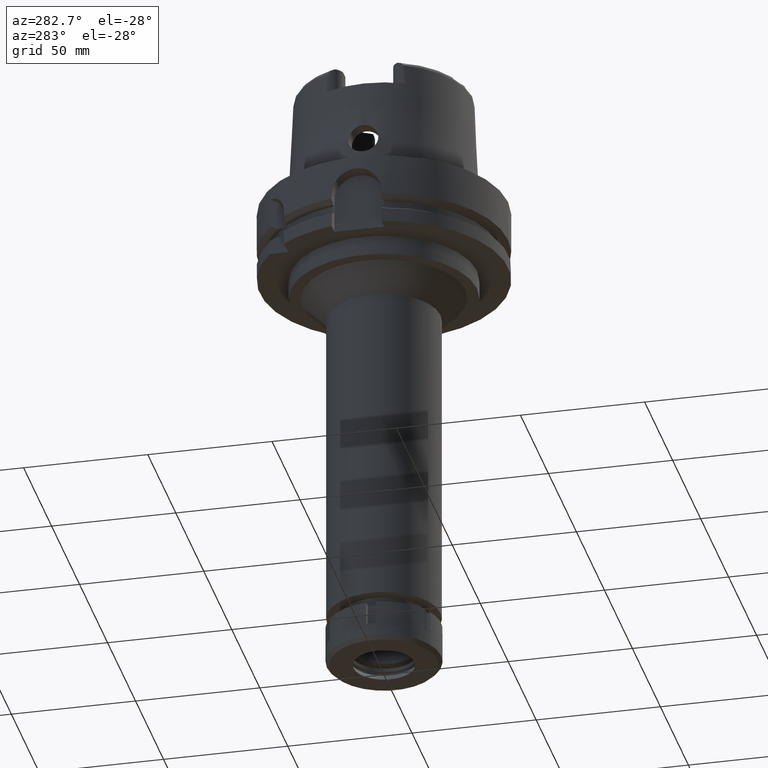
[diagram: clean part render]
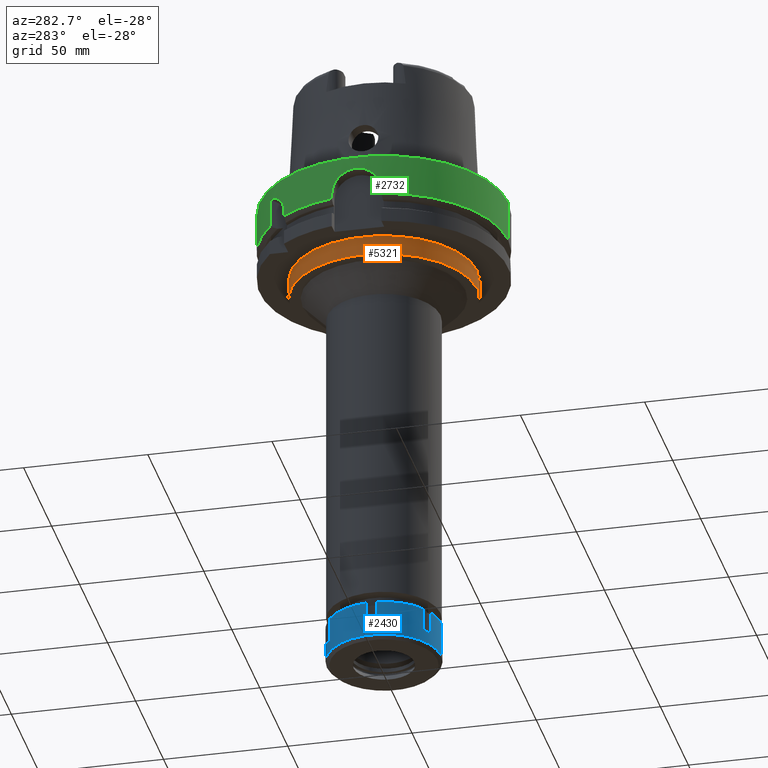
[diagram: same view with three faces highlighted in distinct colors, each labeled with its STEP entity id]
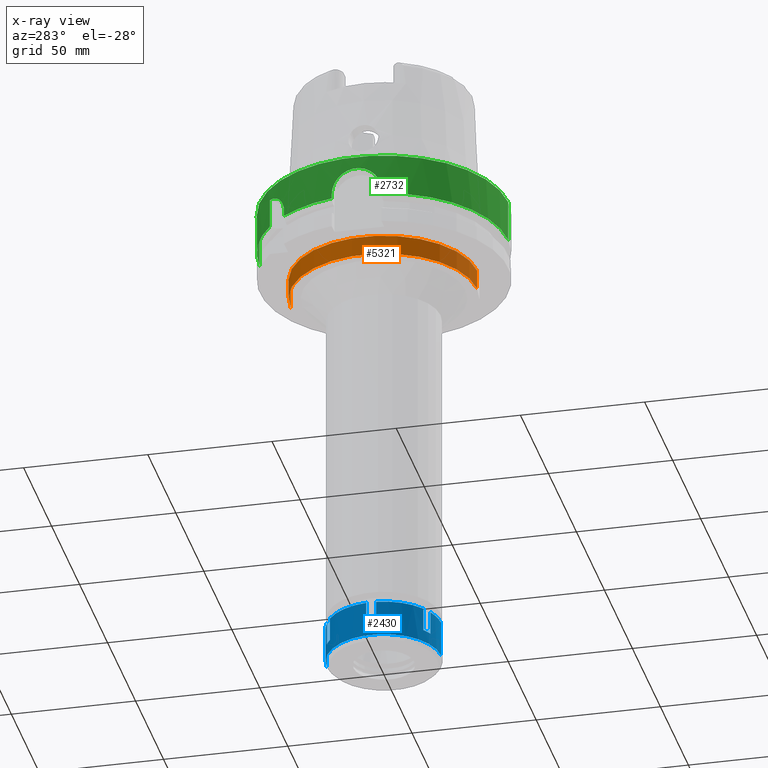
[diagram: x-ray of the same camera — body ghosted, the three highlighted faces saturated]
A machine part, auxiliary view with three faces highlighted in distinct colors.
The next image is the same camera in x-ray (body ghosted, the three faces saturated) — at least one of them is partly hidden behind the body in this view.
Their STEP definitions:

[orange] entity #5321 — the highlighted cylindrical surface (partial cylindrical patch) has radius 37.5 mm, axis along (0, 0, 1).
#343 = ORIENTED_EDGE ( 'NONE', *, *, #6106, .T. ) ;
#688 = ORIENTED_EDGE ( 'NONE', *, *, #4340, .T. ) ;
#834 = DIRECTION ( 'NONE',  ( 0.0000000000000000000, 0.0000000000000000000, -1.000000000000000000 ) ) ;
#878 = FACE_OUTER_BOUND ( 'NONE', #3009, .T. ) ;
#935 = VERTEX_POINT ( 'NONE', #6108 ) ;
#1067 = AXIS2_PLACEMENT_3D ( 'NONE', #3177, #5457, #4167 ) ;
#1122 = VECTOR ( 'NONE', #4808, 1000.000000000000000 ) ;
#1273 = VERTEX_POINT ( 'NONE', #5536 ) ;
#1358 = EDGE_CURVE ( 'NONE', #2012, #1482, #1552, .T. ) ;
#1482 = VERTEX_POINT ( 'NONE', #3808 ) ;
#1533 = CARTESIAN_POINT ( 'NONE',  ( 0.0000000000000000000, 0.0000000000000000000, -37.00000000000000000 ) ) ;
#1552 = CIRCLE ( 'NONE', #4937, 37.50000000000000000 ) ;
#1640 = ORIENTED_EDGE ( 'NONE', *, *, #1358, .T. ) ;
#2012 = VERTEX_POINT ( 'NONE', #2828 ) ;
#2215 = EDGE_CURVE ( 'NONE', #2012, #1273, #2538, .T. ) ;
#2538 = LINE ( 'NONE', #2923, #1122 ) ;
#2681 = VECTOR ( 'NONE', #3969, 1000.000000000000000 ) ;
#2828 = CARTESIAN_POINT ( 'NONE',  ( 0.0000000000000000000, -37.50000000000000000, -29.00000000000000000 ) ) ;
#2923 = CARTESIAN_POINT ( 'NONE',  ( 0.0000000000000000000, -37.50000000000000000, -29.00000000000000000 ) ) ;
#3009 = EDGE_LOOP ( 'NONE', ( #688, #3938, #1640, #343 ) ) ;
#3177 = CARTESIAN_POINT ( 'NONE',  ( 0.0000000000000000000, 0.0000000000000000000, -204.0999999999999943 ) ) ;
#3515 = LINE ( 'NONE', #4437, #2681 ) ;
#3596 = CARTESIAN_POINT ( 'NONE',  ( 0.0000000000000000000, 0.0000000000000000000, -29.00000000000000000 ) ) ;
#3808 = CARTESIAN_POINT ( 'NONE',  ( 0.0000000000000000000, 37.50000000000000000, -29.00000000000000000 ) ) ;
#3938 = ORIENTED_EDGE ( 'NONE', *, *, #2215, .F. ) ;
#3964 = DIRECTION ( 'NONE',  ( 0.0000000000000000000, 0.0000000000000000000, 1.000000000000000000 ) ) ;
#3969 = DIRECTION ( 'NONE',  ( 0.0000000000000000000, 0.0000000000000000000, -1.000000000000000000 ) ) ;
#4167 = DIRECTION ( 'NONE',  ( 0.0000000000000000000, 1.000000000000000000, 0.0000000000000000000 ) ) ;
#4340 = EDGE_CURVE ( 'NONE', #935, #1273, #5031, .T. ) ;
#4437 = CARTESIAN_POINT ( 'NONE',  ( 0.0000000000000000000, 37.50000000000000000, -29.00000000000000000 ) ) ;
#4681 = DIRECTION ( 'NONE',  ( 0.0000000000000000000, -1.000000000000000000, 0.0000000000000000000 ) ) ;
#4808 = DIRECTION ( 'NONE',  ( 0.0000000000000000000, 0.0000000000000000000, -1.000000000000000000 ) ) ;
#4937 = AXIS2_PLACEMENT_3D ( 'NONE', #3596, #834, #4681 ) ;
#5031 = CIRCLE ( 'NONE', #5137, 37.50000000000000000 ) ;
#5137 = AXIS2_PLACEMENT_3D ( 'NONE', #1533, #3964, #5852 ) ;
#5321 = ADVANCED_FACE ( 'NONE', ( #878 ), #6089, .T. ) ;
#5457 = DIRECTION ( 'NONE',  ( 0.0000000000000000000, 0.0000000000000000000, 1.000000000000000000 ) ) ;
#5536 = CARTESIAN_POINT ( 'NONE',  ( 0.0000000000000000000, -37.50000000000000000, -37.00000000000000000 ) ) ;
#5852 = DIRECTION ( 'NONE',  ( 0.0000000000000000000, 1.000000000000000000, 0.0000000000000000000 ) ) ;
#6089 = CYLINDRICAL_SURFACE ( 'NONE', #1067, 37.50000000000000000 ) ;
#6106 = EDGE_CURVE ( 'NONE', #1482, #935, #3515, .T. ) ;
#6108 = CARTESIAN_POINT ( 'NONE',  ( 0.0000000000000000000, 37.50000000000000000, -37.00000000000000000 ) ) ;

[blue] entity #2430 — the highlighted cylindrical surface (partial cylindrical patch) has radius 23 mm, axis along (0, 0, -1).
#42 = DIRECTION ( 'NONE',  ( 0.0000000000000000000, 0.0000000000000000000, 1.000000000000000000 ) ) ;
#71 = VECTOR ( 'NONE', #4994, 1000.000000000000000 ) ;
#76 = CARTESIAN_POINT ( 'NONE',  ( -22.91287847478000117, 2.000000000000000000, 0.0000000000000000000 ) ) ;
#170 = CARTESIAN_POINT ( 'NONE',  ( 0.0000000000000000000, -23.00000000000000000, 0.0000000000000000000 ) ) ;
#220 = CYLINDRICAL_SURFACE ( 'NONE', #5785, 23.00000000000000000 ) ;
#249 = VERTEX_POINT ( 'NONE', #362 ) ;
#268 = ORIENTED_EDGE ( 'NONE', *, *, #706, .T. ) ;
#362 = CARTESIAN_POINT ( 'NONE',  ( -13.18849004495999999, -18.84313483298000236, 0.0000000000000000000 ) ) ;
#422 = CARTESIAN_POINT ( 'NONE',  ( -13.18849004495999999, -18.84313483298000236, 0.0000000000000000000 ) ) ;
#441 = DIRECTION ( 'NONE',  ( -0.4227994969487938182, -0.9062232536079875000, 0.0000000000000000000 ) ) ;
#454 = LINE ( 'NONE', #422, #5569 ) ;
#556 = CARTESIAN_POINT ( 'NONE',  ( 0.0000000000000000000, 0.0000000000000000000, -14.50000000000000000 ) ) ;
#558 = LINE ( 'NONE', #1596, #1286 ) ;
#601 = AXIS2_PLACEMENT_3D ( 'NONE', #5766, #939, #2912 ) ;
#646 = DIRECTION ( 'NONE',  ( 0.0000000000000000000, 0.0000000000000000000, -1.000000000000000000 ) ) ;
#706 = EDGE_CURVE ( 'NONE', #2223, #2675, #2584, .T. ) ;
#753 = VECTOR ( 'NONE', #3415, 1000.000000000000000 ) ;
#804 = CARTESIAN_POINT ( 'NONE',  ( -13.18849004495999999, 18.84313483298000236, -9.500000000000000000 ) ) ;
#818 = VERTEX_POINT ( 'NONE', #5510 ) ;
#825 = EDGE_CURVE ( 'NONE', #2223, #1853, #4625, .T. ) ;
#847 = CARTESIAN_POINT ( 'NONE',  ( -13.18849004495999999, -18.84313483298000236, -9.500000000000000000 ) ) ;
#853 = VERTEX_POINT ( 'NONE', #804 ) ;
#871 = CARTESIAN_POINT ( 'NONE',  ( -22.91287847478000117, -2.000000000000000000, -9.500000000000000000 ) ) ;
#894 = CARTESIAN_POINT ( 'NONE',  ( -22.91287847478000117, -2.000000000000000000, 0.0000000000000000000 ) ) ;
#939 = DIRECTION ( 'NONE',  ( 0.0000000000000000000, 0.0000000000000000000, -1.000000000000000000 ) ) ;
#997 = EDGE_CURVE ( 'NONE', #6116, #3587, #5939, .T. ) ;
#1027 = EDGE_CURVE ( 'NONE', #853, #4816, #3297, .T. ) ;
#1047 = LINE ( 'NONE', #5761, #753 ) ;
#1059 = CARTESIAN_POINT ( 'NONE',  ( -9.724388429823001445, -20.84313483297999881, -9.500000000000000000 ) ) ;
#1134 = DIRECTION ( 'NONE',  ( -0.9962121075990957308, 0.08695652173912968297, 0.0000000000000000000 ) ) ;
#1237 = FACE_OUTER_BOUND ( 'NONE', #5782, .T. ) ;
#1286 = VECTOR ( 'NONE', #1970, 1000.000000000000000 ) ;
#1328 = DIRECTION ( 'NONE',  ( -0.5734126106503841802, -0.8192667318688773292, 0.0000000000000000000 ) ) ;
#1431 = AXIS2_PLACEMENT_3D ( 'NONE', #2648, #3097, #5968 ) ;
#1517 = CARTESIAN_POINT ( 'NONE',  ( 0.0000000000000000000, 23.00000000000000000, -14.50000000000000000 ) ) ;
#1596 = CARTESIAN_POINT ( 'NONE',  ( -9.724388429820001178, 20.84313483297999881, 0.0000000000000000000 ) ) ;
#1620 = CARTESIAN_POINT ( 'NONE',  ( -13.18849004495999999, 18.84313483298000236, -9.500000000000000000 ) ) ;
#1626 = ORIENTED_EDGE ( 'NONE', *, *, #2594, .F. ) ;
#1651 = VECTOR ( 'NONE', #646, 1000.000000000000000 ) ;
#1692 = ORIENTED_EDGE ( 'NONE', *, *, #2549, .T. ) ;
#1752 = CARTESIAN_POINT ( 'NONE',  ( 0.0000000000000000000, 0.0000000000000000000, 0.0000000000000000000 ) ) ;
#1765 = DIRECTION ( 'NONE',  ( -0.9962121075990957308, -0.08695652173912968297, 0.0000000000000000000 ) ) ;
#1817 = DIRECTION ( 'NONE',  ( 0.0000000000000000000, 0.0000000000000000000, -1.000000000000000000 ) ) ;
#1853 = VERTEX_POINT ( 'NONE', #894 ) ;
#1875 = CARTESIAN_POINT ( 'NONE',  ( -9.724388429822001356, -20.84313483297999881, -9.500000000000000000 ) ) ;
#1876 = DIRECTION ( 'NONE',  ( 0.0000000000000000000, 0.0000000000000000000, -1.000000000000000000 ) ) ;
#1905 = DIRECTION ( 'NONE',  ( -0.5734126106504978670, 0.8192667318687978373, 0.0000000000000000000 ) ) ;
#1968 = CARTESIAN_POINT ( 'NONE',  ( 0.0000000000000000000, 0.0000000000000000000, -9.500000000000000000 ) ) ;
#1970 = DIRECTION ( 'NONE',  ( 0.0000000000000000000, 0.0000000000000000000, -1.000000000000000000 ) ) ;
#1976 = CARTESIAN_POINT ( 'NONE',  ( 0.0000000000000000000, 23.00000000000000000, 0.0000000000000000000 ) ) ;
#2000 = LINE ( 'NONE', #5324, #1651 ) ;
#2083 = EDGE_CURVE ( 'NONE', #5860, #818, #3062, .T. ) ;
#2153 = CIRCLE ( 'NONE', #5634, 22.99999999999999289 ) ;
#2196 = DIRECTION ( 'NONE',  ( 0.0000000000000000000, 0.0000000000000000000, 1.000000000000000000 ) ) ;
#2217 = DIRECTION ( 'NONE',  ( 0.0000000000000000000, 0.0000000000000000000, -1.000000000000000000 ) ) ;
#2223 = VERTEX_POINT ( 'NONE', #3879 ) ;
#2346 = CARTESIAN_POINT ( 'NONE',  ( 0.0000000000000000000, 0.0000000000000000000, -9.500000000000000000 ) ) ;
#2430 = ADVANCED_FACE ( 'NONE', ( #1237 ), #220, .T. ) ;
#2485 = VERTEX_POINT ( 'NONE', #5015 ) ;
#2549 = EDGE_CURVE ( 'NONE', #3684, #5387, #6086, .T. ) ;
#2584 = CIRCLE ( 'NONE', #2677, 23.00000000000000355 ) ;
#2594 = EDGE_CURVE ( 'NONE', #3684, #2485, #5181, .T. ) ;
#2648 = CARTESIAN_POINT ( 'NONE',  ( 0.0000000000000000000, 0.0000000000000000000, 0.0000000000000000000 ) ) ;
#2675 = VERTEX_POINT ( 'NONE', #6107 ) ;
#2677 = AXIS2_PLACEMENT_3D ( 'NONE', #1968, #3421, #1765 ) ;
#2702 = CARTESIAN_POINT ( 'NONE',  ( 0.0000000000000000000, -23.00000000000000000, 0.0000000000000000000 ) ) ;
#2733 = ORIENTED_EDGE ( 'NONE', *, *, #3382, .F. ) ;
#2900 = EDGE_CURVE ( 'NONE', #5906, #2485, #6092, .T. ) ;
#2912 = DIRECTION ( 'NONE',  ( -0.4227994969487119392, 0.9062232536080258027, 0.0000000000000000000 ) ) ;
#2998 = EDGE_CURVE ( 'NONE', #853, #5285, #5500, .T. ) ;
#3028 = EDGE_CURVE ( 'NONE', #5541, #5285, #4773, .T. ) ;
#3062 = CIRCLE ( 'NONE', #3860, 23.00000000000000000 ) ;
#3097 = DIRECTION ( 'NONE',  ( 0.0000000000000000000, 0.0000000000000000000, -1.000000000000000000 ) ) ;
#3221 = ORIENTED_EDGE ( 'NONE', *, *, #4891, .F. ) ;
#3297 = CIRCLE ( 'NONE', #4367, 23.00000000000000355 ) ;
#3322 = AXIS2_PLACEMENT_3D ( 'NONE', #4946, #2217, #1134 ) ;
#3364 = ORIENTED_EDGE ( 'NONE', *, *, #2900, .T. ) ;
#3382 = EDGE_CURVE ( 'NONE', #249, #5387, #454, .T. ) ;
#3415 = DIRECTION ( 'NONE',  ( 0.0000000000000000000, 0.0000000000000000000, -1.000000000000000000 ) ) ;
#3416 = AXIS2_PLACEMENT_3D ( 'NONE', #2346, #1817, #441 ) ;
#3421 = DIRECTION ( 'NONE',  ( 0.0000000000000000000, 0.0000000000000000000, -1.000000000000000000 ) ) ;
#3574 = DIRECTION ( 'NONE',  ( 0.0000000000000000000, 0.0000000000000000000, -1.000000000000000000 ) ) ;
#3587 = VERTEX_POINT ( 'NONE', #1976 ) ;
#3672 = CARTESIAN_POINT ( 'NONE',  ( -13.18849004495999999, 18.84313483298000236, 0.0000000000000000000 ) ) ;
#3684 = VERTEX_POINT ( 'NONE', #1059 ) ;
#3744 = DIRECTION ( 'NONE',  ( 0.0000000000000000000, 0.0000000000000000000, -1.000000000000000000 ) ) ;
#3860 = AXIS2_PLACEMENT_3D ( 'NONE', #556, #4281, #3873 ) ;
#3873 = DIRECTION ( 'NONE',  ( 0.0000000000000000000, 1.000000000000000000, 0.0000000000000000000 ) ) ;
#3879 = CARTESIAN_POINT ( 'NONE',  ( -22.91287847478000117, -2.000000000000000000, -9.500000000000000000 ) ) ;
#4103 = LINE ( 'NONE', #2702, #71 ) ;
#4191 = CARTESIAN_POINT ( 'NONE',  ( 0.0000000000000000000, 0.0000000000000000000, 0.0000000000000000000 ) ) ;
#4268 = VECTOR ( 'NONE', #2196, 1000.000000000000000 ) ;
#4281 = DIRECTION ( 'NONE',  ( 0.0000000000000000000, 0.0000000000000000000, 1.000000000000000000 ) ) ;
#4294 = EDGE_CURVE ( 'NONE', #6116, #4816, #558, .T. ) ;
#4307 = EDGE_CURVE ( 'NONE', #3587, #5860, #2000, .T. ) ;
#4367 = AXIS2_PLACEMENT_3D ( 'NONE', #4715, #1876, #1905 ) ;
#4374 = ORIENTED_EDGE ( 'NONE', *, *, #4307, .T. ) ;
#4610 = ORIENTED_EDGE ( 'NONE', *, *, #5384, .F. ) ;
#4625 = LINE ( 'NONE', #871, #4268 ) ;
#4664 = ORIENTED_EDGE ( 'NONE', *, *, #1027, .T. ) ;
#4715 = CARTESIAN_POINT ( 'NONE',  ( 0.0000000000000000000, 0.0000000000000000000, -9.500000000000000000 ) ) ;
#4719 = EDGE_CURVE ( 'NONE', #249, #1853, #2153, .T. ) ;
#4773 = CIRCLE ( 'NONE', #3322, 23.00000000000000355 ) ;
#4798 = CARTESIAN_POINT ( 'NONE',  ( -9.724388429820001178, 20.84313483297999881, -9.500000000000000000 ) ) ;
#4816 = VERTEX_POINT ( 'NONE', #4798 ) ;
#4891 = EDGE_CURVE ( 'NONE', #5541, #2675, #1047, .T. ) ;
#4946 = CARTESIAN_POINT ( 'NONE',  ( 0.0000000000000000000, 0.0000000000000000000, 0.0000000000000000000 ) ) ;
#4994 = DIRECTION ( 'NONE',  ( 0.0000000000000000000, 0.0000000000000000000, -1.000000000000000000 ) ) ;
#4995 = ORIENTED_EDGE ( 'NONE', *, *, #2083, .T. ) ;
#4998 = ORIENTED_EDGE ( 'NONE', *, *, #825, .F. ) ;
#5006 = DIRECTION ( 'NONE',  ( 0.0000000000000000000, 0.0000000000000000000, 1.000000000000000000 ) ) ;
#5015 = CARTESIAN_POINT ( 'NONE',  ( -9.724388429823001445, -20.84313483297999881, 0.0000000000000000000 ) ) ;
#5024 = ORIENTED_EDGE ( 'NONE', *, *, #3028, .T. ) ;
#5181 = LINE ( 'NONE', #1875, #5877 ) ;
#5285 = VERTEX_POINT ( 'NONE', #3672 ) ;
#5324 = CARTESIAN_POINT ( 'NONE',  ( 0.0000000000000000000, 23.00000000000000000, 0.0000000000000000000 ) ) ;
#5384 = EDGE_CURVE ( 'NONE', #5906, #818, #4103, .T. ) ;
#5387 = VERTEX_POINT ( 'NONE', #847 ) ;
#5417 = CARTESIAN_POINT ( 'NONE',  ( -9.724388429820001178, 20.84313483297999881, 0.0000000000000000000 ) ) ;
#5480 = ORIENTED_EDGE ( 'NONE', *, *, #997, .T. ) ;
#5500 = LINE ( 'NONE', #1620, #5694 ) ;
#5508 = DIRECTION ( 'NONE',  ( 0.0000000000000000000, -1.000000000000000000, 0.0000000000000000000 ) ) ;
#5510 = CARTESIAN_POINT ( 'NONE',  ( 0.0000000000000000000, -23.00000000000000000, -14.50000000000000000 ) ) ;
#5541 = VERTEX_POINT ( 'NONE', #76 ) ;
#5569 = VECTOR ( 'NONE', #3744, 1000.000000000000000 ) ;
#5634 = AXIS2_PLACEMENT_3D ( 'NONE', #4191, #6076, #1328 ) ;
#5694 = VECTOR ( 'NONE', #5006, 1000.000000000000000 ) ;
#5761 = CARTESIAN_POINT ( 'NONE',  ( -22.91287847478000117, 2.000000000000000000, 0.0000000000000000000 ) ) ;
#5766 = CARTESIAN_POINT ( 'NONE',  ( 0.0000000000000000000, 0.0000000000000000000, 0.0000000000000000000 ) ) ;
#5782 = EDGE_LOOP ( 'NONE', ( #5826, #5480, #4374, #4995, #4610, #3364, #1626, #1692, #2733, #5811, #4998, #268, #3221, #5024, #5805, #4664 ) ) ;
#5785 = AXIS2_PLACEMENT_3D ( 'NONE', #1752, #3574, #5508 ) ;
#5805 = ORIENTED_EDGE ( 'NONE', *, *, #2998, .F. ) ;
#5811 = ORIENTED_EDGE ( 'NONE', *, *, #4719, .T. ) ;
#5826 = ORIENTED_EDGE ( 'NONE', *, *, #4294, .F. ) ;
#5860 = VERTEX_POINT ( 'NONE', #1517 ) ;
#5877 = VECTOR ( 'NONE', #42, 1000.000000000000000 ) ;
#5906 = VERTEX_POINT ( 'NONE', #170 ) ;
#5939 = CIRCLE ( 'NONE', #601, 23.00000000000000355 ) ;
#5968 = DIRECTION ( 'NONE',  ( 0.0000000000000000000, -1.000000000000000000, 0.0000000000000000000 ) ) ;
#6076 = DIRECTION ( 'NONE',  ( 0.0000000000000000000, 0.0000000000000000000, -1.000000000000000000 ) ) ;
#6086 = CIRCLE ( 'NONE', #3416, 23.00000000000001066 ) ;
#6092 = CIRCLE ( 'NONE', #1431, 23.00000000000000000 ) ;
#6107 = CARTESIAN_POINT ( 'NONE',  ( -22.91287847478000117, 2.000000000000000000, -9.500000000000000000 ) ) ;
#6116 = VERTEX_POINT ( 'NONE', #5417 ) ;

[green] entity #2732 — the highlighted cylindrical surface (partial cylindrical patch) has radius 50 mm, axis along (0, 0, 1).
#68 = DIRECTION ( 'NONE',  ( -0.7765951326141738997, 0.6299999999999789102, 0.0000000000000000000 ) ) ;
#97 = CARTESIAN_POINT ( 'NONE',  ( -37.33572020047412110, 33.25724752293283615, -8.974982592635551981 ) ) ;
#98 = AXIS2_PLACEMENT_3D ( 'NONE', #429, #2450, #4348 ) ;
#147 = ORIENTED_EDGE ( 'NONE', *, *, #2735, .T. ) ;
#150 = CARTESIAN_POINT ( 'NONE',  ( -31.50000000000000000, 38.82975663071000128, -5.000000000003000267 ) ) ;
#153 = CARTESIAN_POINT ( 'NONE',  ( 0.0000000000000000000, 0.0000000000000000000, -16.75240473580999989 ) ) ;
#182 = CARTESIAN_POINT ( 'NONE',  ( -38.49417526306131521, 31.90921890468079170, -11.80531099457515509 ) ) ;
#205 = ORIENTED_EDGE ( 'NONE', *, *, #4922, .T. ) ;
#262 = CARTESIAN_POINT ( 'NONE',  ( -49.93462291666928365, 2.575094342414258275, -5.331671757788129185 ) ) ;
#292 = CARTESIAN_POINT ( 'NONE',  ( -49.80548320813466034, 4.408634296087972970, -6.022720569784056899 ) ) ;
#324 = EDGE_CURVE ( 'NONE', #2583, #6012, #713, .T. ) ;
#327 = CARTESIAN_POINT ( 'NONE',  ( -49.83088100520594566, 4.111631330436995135, -5.882929343942222999 ) ) ;
#390 = CARTESIAN_POINT ( 'NONE',  ( -49.89853031763028213, 3.199116884832423402, -5.519803669002639523 ) ) ;
#429 = CARTESIAN_POINT ( 'NONE',  ( 0.0000000000000000000, 0.0000000000000000000, -4.547473508865000658E-13 ) ) ;
#444 = LINE ( 'NONE', #3270, #3856 ) ;
#535 = CARTESIAN_POINT ( 'NONE',  ( 0.0000000000000000000, 50.00000000000000000, -16.75240473580999989 ) ) ;
#544 = ORIENTED_EDGE ( 'NONE', *, *, #3917, .F. ) ;
#552 = CARTESIAN_POINT ( 'NONE',  ( -37.41516077199226231, 33.16792255083750263, -9.106655531097096912 ) ) ;
#611 = CARTESIAN_POINT ( 'NONE',  ( 0.0000000000000000000, 0.0000000000000000000, -16.75240473580999989 ) ) ;
#628 = CARTESIAN_POINT ( 'NONE',  ( 0.0000000000000000000, -50.00000000000000000, -2.084258691562999589E-13 ) ) ;
#642 = CARTESIAN_POINT ( 'NONE',  ( -38.82975663071000128, 31.50000000000000000, -14.63689785921000031 ) ) ;
#713 = LINE ( 'NONE', #628, #3381 ) ;
#735 = CARTESIAN_POINT ( 'NONE',  ( -31.50000355958999876, 38.82975374304999860, -16.75239179145000179 ) ) ;
#746 = CARTESIAN_POINT ( 'NONE',  ( -49.84316059598523196, 3.960094495465347642, -5.816133034837253746 ) ) ;
#756 = CARTESIAN_POINT ( 'NONE',  ( -35.14104524820984921, 35.56834340242502890, -6.586089123182869542 ) ) ;
#778 = CARTESIAN_POINT ( 'NONE',  ( -49.11376363314892757, -9.373064409457763091, -11.49986860834950697 ) ) ;
#823 = VERTEX_POINT ( 'NONE', #5545 ) ;
#832 = AXIS2_PLACEMENT_3D ( 'NONE', #5858, #1599, #1943 ) ;
#836 = AXIS2_PLACEMENT_3D ( 'NONE', #611, #4332, #68 ) ;
#852 = CARTESIAN_POINT ( 'NONE',  ( -49.79228015958732811, 4.555210951700218835, -6.096173122614678697 ) ) ;
#873 = DIRECTION ( 'NONE',  ( 3.166955095344913800E-07, 3.903884141554897929E-07, 0.9999999999998735456 ) ) ;
#883 = CARTESIAN_POINT ( 'NONE',  ( -49.75106190796371664, -4.991618715123124161, -6.328623381142022275 ) ) ;
#946 = VERTEX_POINT ( 'NONE', #1239 ) ;
#987 = CARTESIAN_POINT ( 'NONE',  ( -48.98979485566343328, 10.00000000000068390, -14.35005737063801234 ) ) ;
#992 = EDGE_CURVE ( 'NONE', #823, #5607, #1474, .T. ) ;
#1023 = CARTESIAN_POINT ( 'NONE',  ( -38.17634580387134946, 32.29030185245336071, -10.70673178654985236 ) ) ;
#1076 = CARTESIAN_POINT ( 'NONE',  ( -38.56424170246049243, 31.82455795858749781, -12.10452441681672653 ) ) ;
#1129 = ORIENTED_EDGE ( 'NONE', *, *, #3290, .T. ) ;
#1133 = DIRECTION ( 'NONE',  ( 0.0000000000000000000, 1.000000000000000000, 0.0000000000000000000 ) ) ;
#1196 = CARTESIAN_POINT ( 'NONE',  ( -35.13511097246897208, 35.57420568657305893, -6.581771914313359062 ) ) ;
#1219 = CARTESIAN_POINT ( 'NONE',  ( -49.18420438027067121, -8.998805366626610791, -10.58962199835453433 ) ) ;
#1239 = CARTESIAN_POINT ( 'NONE',  ( -48.98979485565999425, -10.00000000000000000, -16.75240473580999989 ) ) ;
#1280 = CARTESIAN_POINT ( 'NONE',  ( -49.53081940382045900, 6.837682046650763290, -7.695724612512000462 ) ) ;
#1316 = CARTESIAN_POINT ( 'NONE',  ( -50.00001917369581861, 0.6507172280794784047, -4.999934325307199501 ) ) ;
#1346 = CARTESIAN_POINT ( 'NONE',  ( -49.86615725287952472, -3.659193468112386771, -5.692085982836761815 ) ) ;
#1370 = VERTEX_POINT ( 'NONE', #4649 ) ;
#1381 = CIRCLE ( 'NONE', #98, 50.00000000000000000 ) ;
#1473 = CARTESIAN_POINT ( 'NONE',  ( -38.47228472298293411, 31.93561203944873839, -11.71738750317554967 ) ) ;
#1474 = LINE ( 'NONE', #2879, #1676 ) ;
#1501 = CARTESIAN_POINT ( 'NONE',  ( -38.33682883314997980, 32.09874985379882162, -11.18910333303196758 ) ) ;
#1599 = DIRECTION ( 'NONE',  ( 0.0000000000000000000, 0.0000000000000000000, 1.000000000000000000 ) ) ;
#1627 = VECTOR ( 'NONE', #5901, 1000.000000000000000 ) ;
#1676 = VECTOR ( 'NONE', #3303, 1000.000000000000000 ) ;
#1705 = CARTESIAN_POINT ( 'NONE',  ( -49.89769283228734764, -3.200617833891376662, -5.524533901497208355 ) ) ;
#1715 = LINE ( 'NONE', #6036, #4646 ) ;
#1724 = EDGE_CURVE ( 'NONE', #2583, #823, #1381, .T. ) ;
#1735 = CARTESIAN_POINT ( 'NONE',  ( -49.87703576134467909, -3.507849507243542053, -5.633983893725047487 ) ) ;
#1796 = CARTESIAN_POINT ( 'NONE',  ( -49.56403686238514439, 6.593337011001602299, -7.474314395988873372 ) ) ;
#1801 = VERTEX_POINT ( 'NONE', #3258 ) ;
#1914 = EDGE_CURVE ( 'NONE', #2413, #3644, #5185, .T. ) ;
#1943 = DIRECTION ( 'NONE',  ( -0.9797958971132723072, -0.1999999999999946265, 0.0000000000000000000 ) ) ;
#1963 = CARTESIAN_POINT ( 'NONE',  ( -37.31963231095137701, 33.27529669431210380, -8.948795502758233766 ) ) ;
#1989 = CARTESIAN_POINT ( 'NONE',  ( -49.24044915328185112, 8.690024531768790084, -10.00806329916432702 ) ) ;
#2095 = ORIENTED_EDGE ( 'NONE', *, *, #2869, .F. ) ;
#2138 = CARTESIAN_POINT ( 'NONE',  ( -49.43043868160641097, 7.540265120260947640, -8.398204971003021768 ) ) ;
#2172 = CARTESIAN_POINT ( 'NONE',  ( -49.66105683744330435, 5.818537897157073147, -6.860397355471829606 ) ) ;
#2208 = CARTESIAN_POINT ( 'NONE',  ( -49.56387403248389489, -6.606463036123483512, -7.464265824091845580 ) ) ;
#2270 = CARTESIAN_POINT ( 'NONE',  ( -49.24035225128256599, -8.690524402115524794, -10.00916674575266718 ) ) ;
#2350 = EDGE_CURVE ( 'NONE', #946, #6012, #5374, .T. ) ;
#2411 = ORIENTED_EDGE ( 'NONE', *, *, #1724, .T. ) ;
#2413 = VERTEX_POINT ( 'NONE', #3602 ) ;
#2424 = B_SPLINE_CURVE_WITH_KNOTS ( 'NONE', 3,
 ( #4328, #987, #4356, #3348, #5226, #2870, #1989, #5787, #2138, #1280, #1796, #5989, #2172, #5130, #2707, #852, #292, #327, #746, #5462, #390, #262, #4573, #6018, #1316, #5958, #2740, #4141, #3119, #4997, #4039, #1705, #1735, #1346, #3182, #4635, #883, #5927, #3218, #2208, #5594, #4074, #2270, #1219, #778, #3252, #3614, #5557, #5492, #3643, #4605 ),
 .UNSPECIFIED., .F., .F.,
 ( 4, 2, 2, 2, 2, 2, 2, 2, 2, 2, 2, 2, 2, 2, 2, 1, 2, 2, 2, 2, 2, 2, 2, 2, 2, 4 ),
 ( 0.0000000000000000000, 0.06249999999999994449, 0.1249999999999998890, 0.1874999999999998335, 0.2499999999999997780, 0.2812499999999997224, 0.3124999999999996114, 0.3437499999999995559, 0.3593749999999994449, 0.3749999999999994449, 0.4062499999999994449, 0.4374999999999993894, 0.4999999999999994449, 0.5312499999999995559, 0.5624999999999995559, 0.5937499999999994449, 0.6093749999999995559, 0.6249999999999996669, 0.6562499999999997780, 0.6874999999999997780, 0.7500000000000000000, 0.8125000000000000000, 0.8750000000000001110, 0.9062500000000001110, 0.9375000000000000000, 1.000000000000000000 ),
 .UNSPECIFIED. ) ;
#2437 = CIRCLE ( 'NONE', #5900, 50.00000000000000000 ) ;
#2450 = DIRECTION ( 'NONE',  ( 0.0000000000000000000, 0.0000000000000000000, -1.000000000000000000 ) ) ;
#2472 = VERTEX_POINT ( 'NONE', #735 ) ;
#2530 = CARTESIAN_POINT ( 'NONE',  ( -38.70794333029446932, 31.64968533049240662, -12.89517464464765162 ) ) ;
#2583 = VERTEX_POINT ( 'NONE', #5643 ) ;
#2707 = CARTESIAN_POINT ( 'NONE',  ( -49.75130849873972494, 4.989162643622954363, -6.327201600835689277 ) ) ;
#2732 = ADVANCED_FACE ( 'NONE', ( #4160 ), #6041, .T. ) ;
#2735 = EDGE_CURVE ( 'NONE', #2413, #1370, #3613, .T. ) ;
#2740 = CARTESIAN_POINT ( 'NONE',  ( -49.99679066775175329, -0.6521743342392910536, -5.015926370781611077 ) ) ;
#2790 = CARTESIAN_POINT ( 'NONE',  ( 0.0000000000000000000, 0.0000000000000000000, -204.0999999999999943 ) ) ;
#2840 = EDGE_LOOP ( 'NONE', ( #2095, #3740, #147, #3149, #1129, #4776, #5722, #4202, #2411, #4953, #205, #544 ) ) ;
#2869 = EDGE_CURVE ( 'NONE', #3644, #3265, #4123, .T. ) ;
#2870 = CARTESIAN_POINT ( 'NONE',  ( -49.18455382611102067, 8.996917991495942957, -10.58550029686517213 ) ) ;
#2878 = CARTESIAN_POINT ( 'NONE',  ( -37.88612856050551159, 32.62930837913796012, -10.01336928251975067 ) ) ;
#2879 = CARTESIAN_POINT ( 'NONE',  ( 0.0000000000000000000, 50.00000000000000000, -2.084258691562999589E-13 ) ) ;
#2907 = DIRECTION ( 'NONE',  ( 0.0000000000000000000, 0.0000000000000000000, 1.000000000000000000 ) ) ;
#2910 = CARTESIAN_POINT ( 'NONE',  ( -37.78114069614223780, 32.75091199585798307, -9.787269412893646603 ) ) ;
#2941 = CARTESIAN_POINT ( 'NONE',  ( -36.15167788254175463, 34.54163236503070777, -7.449658668152753904 ) ) ;
#2971 = CARTESIAN_POINT ( 'NONE',  ( -38.51594463217853104, 31.88294967386663004, -11.89479839063224809 ) ) ;
#3002 = CARTESIAN_POINT ( 'NONE',  ( -38.82975663071002259, 31.50000000000000711, -14.13572222357600339 ) ) ;
#3119 = CARTESIAN_POINT ( 'NONE',  ( -49.97483885195974551, -1.618314150111374916, -5.126409265260192250 ) ) ;
#3149 = ORIENTED_EDGE ( 'NONE', *, *, #4360, .F. ) ;
#3182 = CARTESIAN_POINT ( 'NONE',  ( -49.83122218389534197, -4.116143787963943090, -5.880543228701008651 ) ) ;
#3218 = CARTESIAN_POINT ( 'NONE',  ( -49.62998613931757319, -6.096753634371355091, -7.045971586300147749 ) ) ;
#3252 = CARTESIAN_POINT ( 'NONE',  ( -49.09271132056310449, -9.482343631657496275, -11.80755049757597241 ) ) ;
#3258 = CARTESIAN_POINT ( 'NONE',  ( -48.98979485565999425, -10.00000000000000000, -15.00000000000000000 ) ) ;
#3265 = VERTEX_POINT ( 'NONE', #150 ) ;
#3270 = CARTESIAN_POINT ( 'NONE',  ( -31.50000000000000000, 38.82975663071000128, -5.000000000003000267 ) ) ;
#3290 = EDGE_CURVE ( 'NONE', #4751, #1801, #2424, .T. ) ;
#3303 = DIRECTION ( 'NONE',  ( 0.0000000000000000000, -2.969006079282000197E-14, -1.000000000000000000 ) ) ;
#3348 = CARTESIAN_POINT ( 'NONE',  ( -49.05322561594706343, 9.684918240383739274, -12.42510244164867572 ) ) ;
#3381 = VECTOR ( 'NONE', #3974, 1000.000000000000000 ) ;
#3383 = CARTESIAN_POINT ( 'NONE',  ( -37.61128572473538156, 32.94545737913873751, -9.456534957756687731 ) ) ;
#3417 = CARTESIAN_POINT ( 'NONE',  ( -37.01919641921266901, 33.61187606258931027, -8.465345307037756228 ) ) ;
#3446 = CARTESIAN_POINT ( 'NONE',  ( -38.79930330560612362, 31.53774610666608424, -13.63555239304892552 ) ) ;
#3593 = CARTESIAN_POINT ( 'NONE',  ( -35.17538494472937316, 35.53439191130910046, -6.611187958302975787 ) ) ;
#3602 = CARTESIAN_POINT ( 'NONE',  ( -38.82975730067999365, 31.49999917413000361, -16.75240773889999701 ) ) ;
#3613 = CIRCLE ( 'NONE', #836, 50.00000000000000711 ) ;
#3614 = CARTESIAN_POINT ( 'NONE',  ( -49.05607950526424332, -9.670067689844390912, -12.43144698115179381 ) ) ;
#3643 = CARTESIAN_POINT ( 'NONE',  ( -48.98979485566344039, -10.00000000000062350, -14.35060845480967728 ) ) ;
#3644 = VERTEX_POINT ( 'NONE', #3911 ) ;
#3652 = LINE ( 'NONE', #4519, #1627 ) ;
#3662 = VECTOR ( 'NONE', #873, 1000.000000000000227 ) ;
#3734 = CARTESIAN_POINT ( 'NONE',  ( -38.82975730067999365, 31.49999917413000361, -16.75240773889999701 ) ) ;
#3740 = ORIENTED_EDGE ( 'NONE', *, *, #1914, .F. ) ;
#3856 = VECTOR ( 'NONE', #5613, 1000.000000000000114 ) ;
#3909 = CARTESIAN_POINT ( 'NONE',  ( 0.0000000000000000000, -50.00000000000000000, -16.75240473580999989 ) ) ;
#3911 = CARTESIAN_POINT ( 'NONE',  ( -38.82975663071000128, 31.50000000000000000, -14.63689785921000031 ) ) ;
#3917 = EDGE_CURVE ( 'NONE', #3265, #2472, #444, .T. ) ;
#3924 = CARTESIAN_POINT ( 'NONE',  ( -35.50468805869918754, 35.20591512347805718, -6.864082422001127171 ) ) ;
#3974 = DIRECTION ( 'NONE',  ( 0.0000000000000000000, 2.969006079282000197E-14, -1.000000000000000000 ) ) ;
#4039 = CARTESIAN_POINT ( 'NONE',  ( -49.92677992032193401, -2.736203835848271204, -5.371830091994098666 ) ) ;
#4074 = CARTESIAN_POINT ( 'NONE',  ( -49.36383213806766435, -7.959244993014912062, -8.910430158359318398 ) ) ;
#4085 = CARTESIAN_POINT ( 'NONE',  ( -34.12351602468924483, 36.57285264850190032, -5.848589286633947282 ) ) ;
#4123 = B_SPLINE_CURVE_WITH_KNOTS ( 'NONE', 3,
 ( #642, #3002, #3446, #2530, #4429, #5318, #1076, #2971, #182, #5731, #1473, #1501, #1023, #2878, #2910, #3383, #5261, #552, #4769, #97, #1963, #5763, #3417, #5292, #2941, #4364, #4857, #3924, #5819, #5350, #3593, #5878, #756, #1196, #4085, #5472, #5380 ),
 .UNSPECIFIED., .F., .F.,
 ( 4, 2, 2, 1, 1, 2, 2, 2, 2, 1, 1, 1, 2, 2, 2, 2, 1, 1, 1, 1, 2, 2, 4 ),
 ( 0.0000000000000000000, 0.1250000000000065503, 0.1875000000000098255, 0.2187500000000115186, 0.2343750000000123790, 0.2421875000000132117, 0.2500000000000140443, 0.3750000000000257572, 0.4375000000000314748, 0.4687500000000340838, 0.4843750000000353051, 0.4921875000000354716, 0.4960937500000355271, 0.5000000000000356382, 0.6250000000000388578, 0.6875000000000404121, 0.7187500000000407452, 0.7343750000000409672, 0.7421875000000409672, 0.7460937500000410783, 0.7480468750000407452, 0.7500000000000404121, 1.000000000000000000 ),
 .UNSPECIFIED. ) ;
#4141 = CARTESIAN_POINT ( 'NONE',  ( -49.98418582510129937, -1.298297284512921701, -5.079242037575945723 ) ) ;
#4160 = FACE_OUTER_BOUND ( 'NONE', #2840, .T. ) ;
#4202 = ORIENTED_EDGE ( 'NONE', *, *, #324, .F. ) ;
#4328 = CARTESIAN_POINT ( 'NONE',  ( -48.98979485565999425, 10.00000000000000000, -15.00000000000000000 ) ) ;
#4332 = DIRECTION ( 'NONE',  ( 0.0000000000000000000, 0.0000000000000000000, 1.000000000000000000 ) ) ;
#4348 = DIRECTION ( 'NONE',  ( 0.0000000000000000000, -1.000000000000000000, 0.0000000000000000000 ) ) ;
#4356 = CARTESIAN_POINT ( 'NONE',  ( -49.00268562907454140, 9.937473813299511960, -13.70728021817936160 ) ) ;
#4360 = EDGE_CURVE ( 'NONE', #4751, #1370, #1715, .T. ) ;
#4364 = CARTESIAN_POINT ( 'NONE',  ( -35.96052402830353145, 34.74078940126172910, -7.262130294354417259 ) ) ;
#4429 = CARTESIAN_POINT ( 'NONE',  ( -38.66987667391460803, 31.69620535395212357, -12.65002533855229316 ) ) ;
#4519 = CARTESIAN_POINT ( 'NONE',  ( -48.98979485565999425, -10.00000000000000000, -16.75240473580999989 ) ) ;
#4573 = CARTESIAN_POINT ( 'NONE',  ( -49.95006982210665569, 2.256771248764186222, -5.252588371870344552 ) ) ;
#4603 = AXIS2_PLACEMENT_3D ( 'NONE', #2790, #4799, #4827 ) ;
#4605 = CARTESIAN_POINT ( 'NONE',  ( -48.98979485565999425, -10.00000000000000000, -15.00000000000000000 ) ) ;
#4635 = CARTESIAN_POINT ( 'NONE',  ( -49.80571241117146997, -4.413097504348248989, -6.020414524753009644 ) ) ;
#4646 = VECTOR ( 'NONE', #4982, 1000.000000000000000 ) ;
#4649 = CARTESIAN_POINT ( 'NONE',  ( -48.98979485565999425, 10.00000000000000000, -16.75240473580999989 ) ) ;
#4751 = VERTEX_POINT ( 'NONE', #5114 ) ;
#4769 = CARTESIAN_POINT ( 'NONE',  ( -37.35975536932964758, 33.23026260721444203, -9.014334853884573562 ) ) ;
#4776 = ORIENTED_EDGE ( 'NONE', *, *, #5090, .F. ) ;
#4799 = DIRECTION ( 'NONE',  ( 0.0000000000000000000, 0.0000000000000000000, 1.000000000000000000 ) ) ;
#4827 = DIRECTION ( 'NONE',  ( 0.0000000000000000000, 1.000000000000000000, 0.0000000000000000000 ) ) ;
#4857 = CARTESIAN_POINT ( 'NONE',  ( -35.65908479119286767, 35.04925230132472080, -6.994490825658925104 ) ) ;
#4922 = EDGE_CURVE ( 'NONE', #5607, #2472, #2437, .T. ) ;
#4953 = ORIENTED_EDGE ( 'NONE', *, *, #992, .T. ) ;
#4982 = DIRECTION ( 'NONE',  ( -4.014125812537999910E-13, -2.635537149646000036E-14, -1.000000000000000000 ) ) ;
#4997 = CARTESIAN_POINT ( 'NONE',  ( -49.94988235401618937, -2.261130643668829876, -5.253539819006844525 ) ) ;
#5090 = EDGE_CURVE ( 'NONE', #946, #1801, #3652, .T. ) ;
#5114 = CARTESIAN_POINT ( 'NONE',  ( -48.98979485565999425, 10.00000000000000000, -15.00000000000000000 ) ) ;
#5130 = CARTESIAN_POINT ( 'NONE',  ( -49.72217867145186432, 5.270758734436687298, -6.495448345955174396 ) ) ;
#5185 = LINE ( 'NONE', #3734, #3662 ) ;
#5226 = CARTESIAN_POINT ( 'NONE',  ( -49.09034584392636447, 9.497516167031065493, -11.80208122146381378 ) ) ;
#5261 = CARTESIAN_POINT ( 'NONE',  ( -37.52326494531646972, 33.04576414966158637, -9.293270397812413819 ) ) ;
#5292 = CARTESIAN_POINT ( 'NONE',  ( -36.69572253374966664, 33.96615993942806000, -8.038231079234629206 ) ) ;
#5318 = CARTESIAN_POINT ( 'NONE',  ( -38.60135669243085488, 31.77951894290280421, -12.28577876664577317 ) ) ;
#5350 = CARTESIAN_POINT ( 'NONE',  ( -35.22323261539907691, 35.48699163965296322, -6.646545587556236256 ) ) ;
#5374 = CIRCLE ( 'NONE', #832, 49.99999999999997868 ) ;
#5380 = CARTESIAN_POINT ( 'NONE',  ( -31.50000000000000000, 38.82975663071000128, -5.000000000003000267 ) ) ;
#5462 = CARTESIAN_POINT ( 'NONE',  ( -49.87782407215960490, 3.506378796914023876, -5.629160743814014545 ) ) ;
#5472 = CARTESIAN_POINT ( 'NONE',  ( -32.91442630763313559, 37.68232660395535305, -5.317936068792134208 ) ) ;
#5492 = CARTESIAN_POINT ( 'NONE',  ( -49.00273075662040867, -9.937243135647635839, -13.70665596228034211 ) ) ;
#5545 = CARTESIAN_POINT ( 'NONE',  ( 0.0000000000000000000, 50.00000000000000000, -2.084258691562999589E-13 ) ) ;
#5557 = CARTESIAN_POINT ( 'NONE',  ( -49.04045175708339599, -9.748753620175190093, -12.74888580247783842 ) ) ;
#5594 = CARTESIAN_POINT ( 'NONE',  ( -49.43026511416469759, -7.541342963888519435, -8.399540386569176675 ) ) ;
#5607 = VERTEX_POINT ( 'NONE', #535 ) ;
#5613 = DIRECTION ( 'NONE',  ( -3.028823767049074487E-07, -2.457085509676059455E-07, -0.9999999999999239497 ) ) ;
#5643 = CARTESIAN_POINT ( 'NONE',  ( 0.0000000000000000000, -50.00000000000000000, -4.547473508865000658E-13 ) ) ;
#5722 = ORIENTED_EDGE ( 'NONE', *, *, #2350, .T. ) ;
#5731 = CARTESIAN_POINT ( 'NONE',  ( -38.47942443371412224, 31.92700724695297154, -11.74574308292882208 ) ) ;
#5763 = CARTESIAN_POINT ( 'NONE',  ( -37.31233061027462128, 33.28348327411286078, -8.936971879460866575 ) ) ;
#5787 = CARTESIAN_POINT ( 'NONE',  ( -49.36428797338434293, 7.956471080853734890, -8.906584865769666237 ) ) ;
#5819 = CARTESIAN_POINT ( 'NONE',  ( -35.31812358806446639, 35.39266103684782649, -6.718032945080954832 ) ) ;
#5858 = CARTESIAN_POINT ( 'NONE',  ( 0.0000000000000000000, 0.0000000000000000000, -16.75240473580999989 ) ) ;
#5878 = CARTESIAN_POINT ( 'NONE',  ( -35.15479261779872644, 35.55475618783527381, -6.596117591750719100 ) ) ;
#5900 = AXIS2_PLACEMENT_3D ( 'NONE', #153, #2907, #1133 ) ;
#5901 = DIRECTION ( 'NONE',  ( 3.933032361779999866E-13, -2.534170336197999844E-14, 1.000000000000000000 ) ) ;
#5927 = CARTESIAN_POINT ( 'NONE',  ( -49.72202991926107529, -5.272212341595793106, -6.496311657787654070 ) ) ;
#5958 = CARTESIAN_POINT ( 'NONE',  ( -49.99999038066754764, -0.3275660290243000983, -5.000074149972184578 ) ) ;
#5989 = CARTESIAN_POINT ( 'NONE',  ( -49.62909813356334610, 6.084279865822895594, -7.056993768890372998 ) ) ;
#6012 = VERTEX_POINT ( 'NONE', #3909 ) ;
#6018 = CARTESIAN_POINT ( 'NONE',  ( -49.98727434096524291, 1.297062362182956452, -5.063062868817330475 ) ) ;
#6036 = CARTESIAN_POINT ( 'NONE',  ( -48.98979485565999425, 10.00000000000000000, -15.00000000000000000 ) ) ;
#6041 = CYLINDRICAL_SURFACE ( 'NONE', #4603, 50.00000000000000000 ) ;